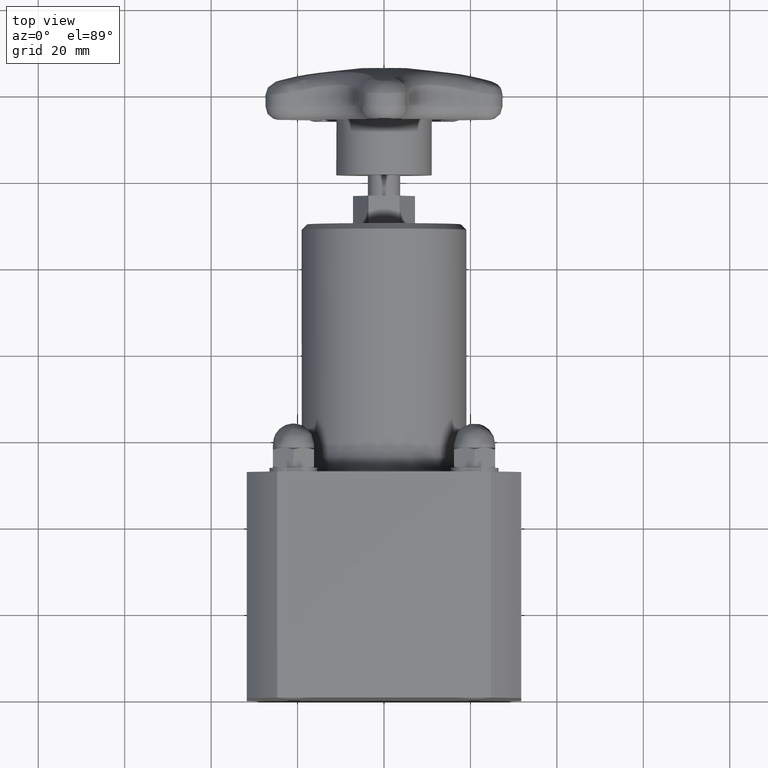
[diagram: clean part render]
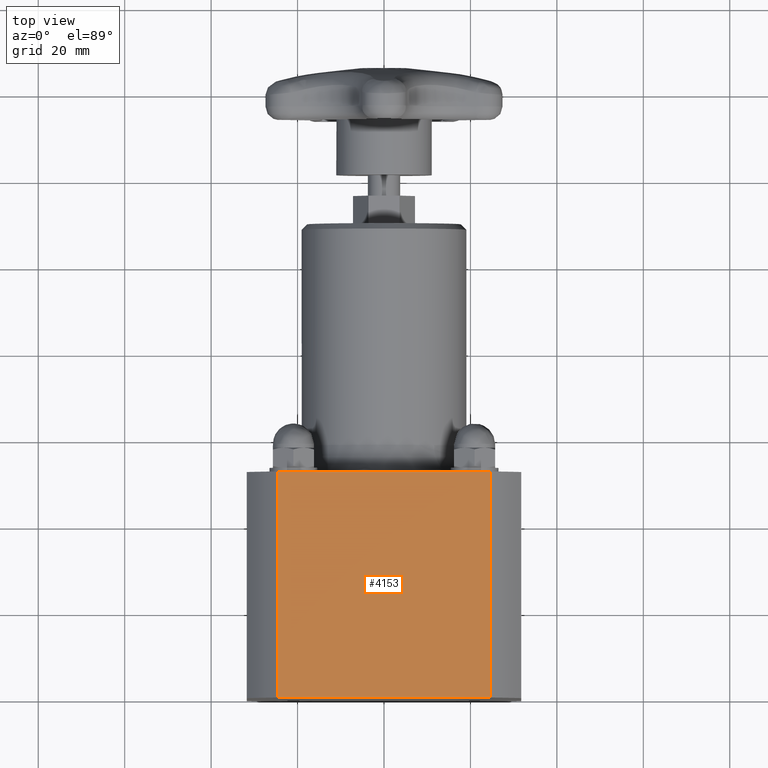
[diagram: same view with one face highlighted and labeled with its STEP entity id]
A machine part, top view. The second image highlights one B-rep face of the part: STEP entity #4153.
In plain terms, the highlighted planar face has unit normal (0, 0, 1).
Its self-contained STEP definition (entity closure, byte-faithful):
#3526=CARTESIAN_POINT('',(-0.973155306207597,2.060000000000000,1.125000000000000));
#3527=VERTEX_POINT('',#3526);
#3535=CARTESIAN_POINT('',(0.973155306207597,2.060000000000000,1.125000000000000));
#3536=VERTEX_POINT('',#3535);
#3537=CARTESIAN_POINT('',(0.973155306207597,2.060000000000000,1.125000000000000));
#3538=DIRECTION('',(-1.0,0.0,0.0));
#3539=VECTOR('',#3538,1.946310612415194);
#3540=LINE('',#3537,#3539);
#3541=EDGE_CURVE('',#3536,#3527,#3540,.T.);
#4110=CARTESIAN_POINT('',(0.973155306207596,0.0,1.125000000000000));
#4111=VERTEX_POINT('',#4110);
#4112=CARTESIAN_POINT('',(0.973155306207596,0.0,1.125000000000000));
#4113=DIRECTION('',(0.0,1.0,0.0));
#4114=VECTOR('',#4113,2.060000000000000);
#4115=LINE('',#4112,#4114);
#4116=EDGE_CURVE('',#4111,#3536,#4115,.T.);
#4130=CARTESIAN_POINT('',(0.973155306207596,0.0,1.125000000000000));
#4131=DIRECTION('',(0.0,0.0,1.0));
#4132=DIRECTION('',(1.0,0.0,0.0));
#4133=AXIS2_PLACEMENT_3D('',#4130,#4131,#4132);
#4134=PLANE('',#4133);
#4135=CARTESIAN_POINT('',(-0.973155306207596,0.0,1.125000000000000));
#4136=VERTEX_POINT('',#4135);
#4137=CARTESIAN_POINT('',(-0.973155306207596,0.0,1.125000000000000));
#4138=DIRECTION('',(0.0,1.0,0.0));
#4139=VECTOR('',#4138,2.060000000000000);
#4140=LINE('',#4137,#4139);
#4141=EDGE_CURVE('',#4136,#3527,#4140,.T.);
#4142=ORIENTED_EDGE('',*,*,#4141,.F.);
#4143=CARTESIAN_POINT('',(0.973155306207596,0.0,1.125000000000000));
#4144=DIRECTION('',(-1.0,0.0,0.0));
#4145=VECTOR('',#4144,1.946310612415193);
#4146=LINE('',#4143,#4145);
#4147=EDGE_CURVE('',#4111,#4136,#4146,.T.);
#4148=ORIENTED_EDGE('',*,*,#4147,.F.);
#4149=ORIENTED_EDGE('',*,*,#4116,.T.);
#4150=ORIENTED_EDGE('',*,*,#3541,.T.);
#4151=EDGE_LOOP('',(#4142,#4148,#4149,#4150));
#4152=FACE_OUTER_BOUND('',#4151,.T.);
#4153=ADVANCED_FACE('',(#4152),#4134,.T.);